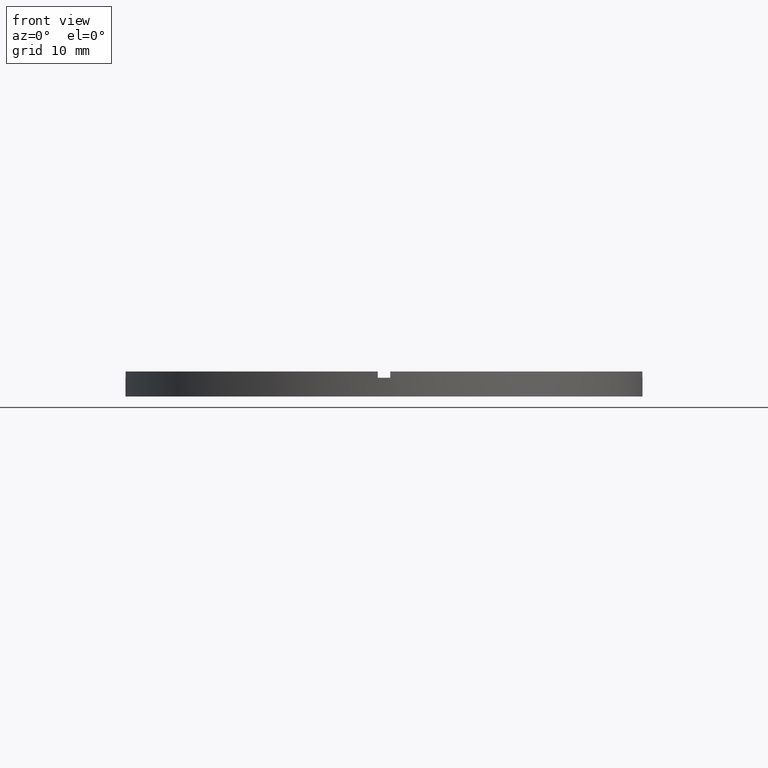
[diagram: clean part render]
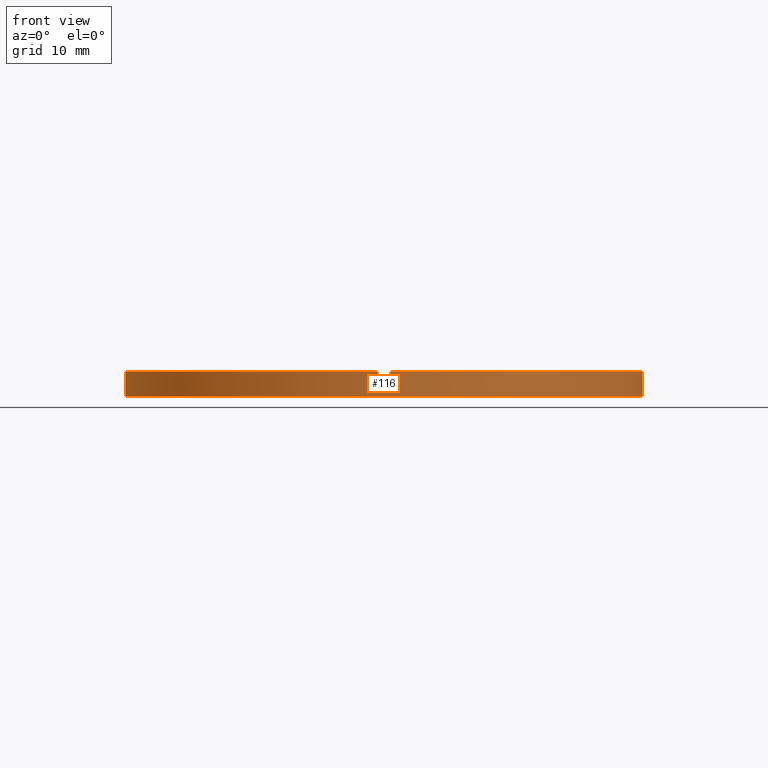
[diagram: same view with one face highlighted and labeled with its STEP entity id]
A machine part, front view. The second image highlights one B-rep face of the part: STEP entity #116.
In plain terms, the highlighted cylindrical surface (partial cylindrical patch) has radius 41.5 mm, axis along (-0, -0, -1).
Its self-contained STEP definition (entity closure, byte-faithful):
#3 = CARTESIAN_POINT ( 'NONE',  ( -41.48795005781799716, -1.000000000000028866, 4.000000000000000000 ) ) ;
#6 = CARTESIAN_POINT ( 'NONE',  ( 0.000000000000000000, 0.000000000000000000, 4.000000000000000000 ) ) ;
#7 = EDGE_CURVE ( 'NONE', #75, #222, #469, .T. ) ;
#17 = CARTESIAN_POINT ( 'NONE',  ( 41.50000000000000000, 5.082284216461515748E-15, 0.000000000000000000 ) ) ;
#22 = CARTESIAN_POINT ( 'NONE',  ( 0.000000000000000000, 0.000000000000000000, 3.000000000000000000 ) ) ;
#25 = CARTESIAN_POINT ( 'NONE',  ( -41.48795005781799716, -1.000000000000028866, 4.000000000000000000 ) ) ;
#28 = AXIS2_PLACEMENT_3D ( 'NONE', #305, #748, #32 ) ;
#32 = DIRECTION ( 'NONE',  ( 1.000000000000000000, 0.000000000000000000, 0.000000000000000000 ) ) ;
#44 = EDGE_CURVE ( 'NONE', #637, #736, #225, .T. ) ;
#50 = LINE ( 'NONE', #277, #572 ) ;
#70 = CARTESIAN_POINT ( 'NONE',  ( 0.9999999999998411271, -41.48795005781800427, 3.000000000000000000 ) ) ;
#75 = VERTEX_POINT ( 'NONE', #3 ) ;
#76 = VECTOR ( 'NONE', #184, 1000.000000000000000 ) ;
#85 = EDGE_CURVE ( 'NONE', #612, #223, #194, .T. ) ;
#89 = DIRECTION ( 'NONE',  ( 0.000000000000000000, 0.000000000000000000, 1.000000000000000000 ) ) ;
#114 = AXIS2_PLACEMENT_3D ( 'NONE', #22, #265, #365 ) ;
#116 = ADVANCED_FACE ( 'NONE', ( #463 ), #208, .T. ) ;
#140 = VERTEX_POINT ( 'NONE', #542 ) ;
#147 = CARTESIAN_POINT ( 'NONE',  ( 0.9999999999998411271, -41.48795005781800427, 4.000000000000000000 ) ) ;
#167 = ORIENTED_EDGE ( 'NONE', *, *, #7, .T. ) ;
#173 = ORIENTED_EDGE ( 'NONE', *, *, #651, .F. ) ;
#176 = ORIENTED_EDGE ( 'NONE', *, *, #209, .F. ) ;
#178 = CARTESIAN_POINT ( 'NONE',  ( 41.48795005781799006, -1.000000000000156763, 4.000000000000000000 ) ) ;
#184 = DIRECTION ( 'NONE',  ( 0.000000000000000000, 0.000000000000000000, 1.000000000000000000 ) ) ;
#190 = VERTEX_POINT ( 'NONE', #147 ) ;
#193 = CARTESIAN_POINT ( 'NONE',  ( 0.000000000000000000, 0.000000000000000000, 3.000000000000000000 ) ) ;
#194 = CIRCLE ( 'NONE', #28, 41.50000000000000000 ) ;
#196 = AXIS2_PLACEMENT_3D ( 'NONE', #6, #486, #503 ) ;
#199 = ORIENTED_EDGE ( 'NONE', *, *, #369, .T. ) ;
#208 = CYLINDRICAL_SURFACE ( 'NONE', #196, 41.50000000000000000 ) ;
#209 = EDGE_CURVE ( 'NONE', #75, #357, #719, .T. ) ;
#218 = VERTEX_POINT ( 'NONE', #227 ) ;
#222 = VERTEX_POINT ( 'NONE', #698 ) ;
#223 = VERTEX_POINT ( 'NONE', #17 ) ;
#225 = LINE ( 'NONE', #482, #717 ) ;
#227 = CARTESIAN_POINT ( 'NONE',  ( -41.50000000000000000, 0.000000000000000000, 3.000000000000000000 ) ) ;
#236 = LINE ( 'NONE', #615, #484 ) ;
#254 = DIRECTION ( 'NONE',  ( -0.000000000000000000, -0.000000000000000000, -1.000000000000000000 ) ) ;
#259 = CARTESIAN_POINT ( 'NONE',  ( 0.000000000000000000, 0.000000000000000000, 3.000000000000000000 ) ) ;
#265 = DIRECTION ( 'NONE',  ( -0.000000000000000000, 0.000000000000000000, 1.000000000000000000 ) ) ;
#274 = CARTESIAN_POINT ( 'NONE',  ( -41.50000000000000000, 0.000000000000000000, 0.000000000000000000 ) ) ;
#277 = CARTESIAN_POINT ( 'NONE',  ( 41.50000000000000000, 5.082284216461515748E-15, 4.000000000000000000 ) ) ;
#297 = DIRECTION ( 'NONE',  ( 1.000000000000000000, 0.000000000000000000, 0.000000000000000000 ) ) ;
#298 = EDGE_CURVE ( 'NONE', #218, #612, #236, .T. ) ;
#305 = CARTESIAN_POINT ( 'NONE',  ( 0.000000000000000000, 0.000000000000000000, 0.000000000000000000 ) ) ;
#315 = DIRECTION ( 'NONE',  ( 0.000000000000000000, 0.000000000000000000, 1.000000000000000000 ) ) ;
#317 = DIRECTION ( 'NONE',  ( 0.000000000000000000, 0.000000000000000000, 1.000000000000000000 ) ) ;
#326 = CIRCLE ( 'NONE', #470, 41.50000000000000000 ) ;
#330 = CARTESIAN_POINT ( 'NONE',  ( 0.000000000000000000, 0.000000000000000000, 4.000000000000000000 ) ) ;
#340 = VECTOR ( 'NONE', #754, 1000.000000000000000 ) ;
#342 = ORIENTED_EDGE ( 'NONE', *, *, #679, .T. ) ;
#346 = CARTESIAN_POINT ( 'NONE',  ( -1.000000000000158984, -41.48795005781799006, 3.000000000000000000 ) ) ;
#354 = DIRECTION ( 'NONE',  ( 0.000000000000000000, 0.000000000000000000, 1.000000000000000000 ) ) ;
#357 = VERTEX_POINT ( 'NONE', #609 ) ;
#363 = CIRCLE ( 'NONE', #114, 41.50000000000000000 ) ;
#365 = DIRECTION ( 'NONE',  ( 1.000000000000000000, 0.000000000000000000, 0.000000000000000000 ) ) ;
#369 = EDGE_CURVE ( 'NONE', #190, #619, #606, .T. ) ;
#376 = EDGE_LOOP ( 'NONE', ( #438, #410, #674, #173, #199, #620, #342, #176, #167, #380, #688, #616 ) ) ;
#380 = ORIENTED_EDGE ( 'NONE', *, *, #696, .F. ) ;
#410 = ORIENTED_EDGE ( 'NONE', *, *, #699, .F. ) ;
#413 = DIRECTION ( 'NONE',  ( 1.000000000000000000, 0.000000000000000000, 0.000000000000000000 ) ) ;
#424 = EDGE_CURVE ( 'NONE', #625, #619, #363, .T. ) ;
#430 = DIRECTION ( 'NONE',  ( -0.000000000000000000, -0.000000000000000000, -1.000000000000000000 ) ) ;
#438 = ORIENTED_EDGE ( 'NONE', *, *, #617, .F. ) ;
#452 = AXIS2_PLACEMENT_3D ( 'NONE', #259, #354, #297 ) ;
#462 = DIRECTION ( 'NONE',  ( 1.000000000000000000, 0.000000000000000000, 0.000000000000000000 ) ) ;
#463 = FACE_OUTER_BOUND ( 'NONE', #376, .T. ) ;
#469 = LINE ( 'NONE', #25, #739 ) ;
#470 = AXIS2_PLACEMENT_3D ( 'NONE', #330, #315, #488 ) ;
#482 = CARTESIAN_POINT ( 'NONE',  ( 41.48795005781799006, -1.000000000000156763, 4.000000000000000000 ) ) ;
#484 = VECTOR ( 'NONE', #509, 1000.000000000000000 ) ;
#486 = DIRECTION ( 'NONE',  ( -0.000000000000000000, -0.000000000000000000, -1.000000000000000000 ) ) ;
#488 = DIRECTION ( 'NONE',  ( 1.000000000000000000, 0.000000000000000000, 0.000000000000000000 ) ) ;
#503 = DIRECTION ( 'NONE',  ( -1.000000000000000000, 0.000000000000000000, 0.000000000000000000 ) ) ;
#509 = DIRECTION ( 'NONE',  ( -0.000000000000000000, -0.000000000000000000, -1.000000000000000000 ) ) ;
#530 = DIRECTION ( 'NONE',  ( 0.000000000000000000, 0.000000000000000000, 1.000000000000000000 ) ) ;
#542 = CARTESIAN_POINT ( 'NONE',  ( 41.50000000000000000, 5.082284216461515748E-15, 3.000000000000000000 ) ) ;
#558 = CARTESIAN_POINT ( 'NONE',  ( 0.000000000000000000, 0.000000000000000000, 4.000000000000000000 ) ) ;
#569 = CIRCLE ( 'NONE', #613, 41.50000000000000000 ) ;
#571 = LINE ( 'NONE', #781, #76 ) ;
#572 = VECTOR ( 'NONE', #254, 1000.000000000000000 ) ;
#583 = CARTESIAN_POINT ( 'NONE',  ( 41.48795005781799006, -1.000000000000156763, 3.000000000000000000 ) ) ;
#594 = CIRCLE ( 'NONE', #452, 41.50000000000000000 ) ;
#606 = LINE ( 'NONE', #687, #340 ) ;
#609 = CARTESIAN_POINT ( 'NONE',  ( -1.000000000000158984, -41.48795005781799006, 4.000000000000000000 ) ) ;
#612 = VERTEX_POINT ( 'NONE', #274 ) ;
#613 = AXIS2_PLACEMENT_3D ( 'NONE', #193, #89, #413 ) ;
#615 = CARTESIAN_POINT ( 'NONE',  ( -41.50000000000000000, 0.000000000000000000, 4.000000000000000000 ) ) ;
#616 = ORIENTED_EDGE ( 'NONE', *, *, #85, .T. ) ;
#617 = EDGE_CURVE ( 'NONE', #140, #223, #50, .T. ) ;
#619 = VERTEX_POINT ( 'NONE', #70 ) ;
#620 = ORIENTED_EDGE ( 'NONE', *, *, #424, .F. ) ;
#625 = VERTEX_POINT ( 'NONE', #346 ) ;
#637 = VERTEX_POINT ( 'NONE', #583 ) ;
#651 = EDGE_CURVE ( 'NONE', #190, #736, #326, .T. ) ;
#674 = ORIENTED_EDGE ( 'NONE', *, *, #44, .T. ) ;
#679 = EDGE_CURVE ( 'NONE', #625, #357, #571, .T. ) ;
#687 = CARTESIAN_POINT ( 'NONE',  ( 0.9999999999998411271, -41.48795005781800427, 4.000000000000000000 ) ) ;
#688 = ORIENTED_EDGE ( 'NONE', *, *, #298, .T. ) ;
#692 = AXIS2_PLACEMENT_3D ( 'NONE', #558, #317, #462 ) ;
#696 = EDGE_CURVE ( 'NONE', #218, #222, #594, .T. ) ;
#698 = CARTESIAN_POINT ( 'NONE',  ( -41.48795005781799716, -1.000000000000028866, 3.000000000000000000 ) ) ;
#699 = EDGE_CURVE ( 'NONE', #637, #140, #569, .T. ) ;
#717 = VECTOR ( 'NONE', #530, 1000.000000000000000 ) ;
#719 = CIRCLE ( 'NONE', #692, 41.50000000000000000 ) ;
#736 = VERTEX_POINT ( 'NONE', #178 ) ;
#739 = VECTOR ( 'NONE', #430, 1000.000000000000000 ) ;
#748 = DIRECTION ( 'NONE',  ( 0.000000000000000000, 0.000000000000000000, 1.000000000000000000 ) ) ;
#754 = DIRECTION ( 'NONE',  ( -0.000000000000000000, -0.000000000000000000, -1.000000000000000000 ) ) ;
#781 = CARTESIAN_POINT ( 'NONE',  ( -1.000000000000158984, -41.48795005781799006, 4.000000000000000000 ) ) ;